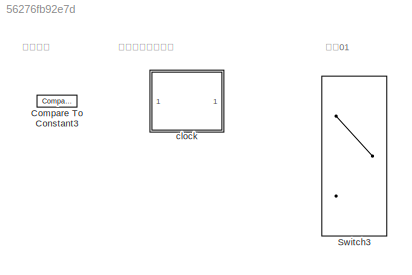
MODEL slx_56276fb92e7d
KIND model
CONFIG AbsTol = auto
CONFIG EnableMultiTasking = off
CONFIG FixedStep = auto
CONFIG MaxStep = auto
CONFIG MinStep = auto
CONFIG RelTol = 1e-3
CONFIG SampleTimeConstraint = Unconstrained
CONFIG Solver = VariableStepAuto
CONFIG SolverName = VariableStepAuto
CONFIG StartTime = 0.0
CONFIG StopTime = 10.0
BLOCK [Reference] Compare To Constant3  REF=simulink/Logic and Bit
Operations/Compare
To Constant
  Ports = [1, 1]
  SourceBlock = simulink/Logic and Bit\nOperations/Compare\nTo Constant
  SourceProductBaseCode = SL
  SourceProductName = Simulink
  SourceType = Compare To Constant
BLOCK [Switch] Switch3
  Criteria = u2 > Threshold
  InputSameDT = off
  OutDataTypeStr = uint16
  SaturateOnIntegerOverflow = off
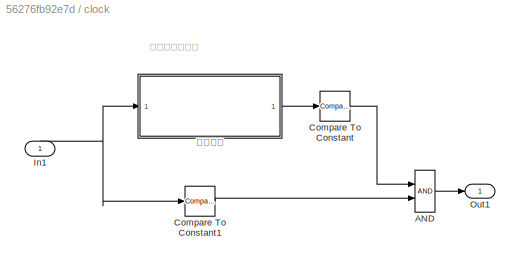
BLOCK [SubSystem] clock
  Ports = [1, 1]
  RequestExecContextInheritance = off
BLOCK [Logic] clock/AND
  AllPortsSameDT = off
  IconShape = distinctive
  OutDataTypeStr = boolean
  Ports = [2, 1]
BLOCK [Reference] clock/Compare To Constant  REF=simulink/Logic and Bit
Operations/Compare
To Constant
  Ports = [1, 1]
  SourceBlock = simulink/Logic and Bit\nOperations/Compare\nTo Constant
  SourceProductBaseCode = SL
  SourceProductName = Simulink
  SourceType = Compare To Constant
BLOCK [Reference] clock/Compare To Constant1  REF=simulink/Logic and Bit
Operations/Compare
To Constant
  Ports = [1, 1]
  SourceBlock = simulink/Logic and Bit\nOperations/Compare\nTo Constant
  SourceProductBaseCode = SL
  SourceProductName = Simulink
  SourceType = Compare To Constant
BLOCK [Inport] clock/In1
  IconDisplay = Port number
BLOCK [Outport] clock/Out1
  IconDisplay = Port number
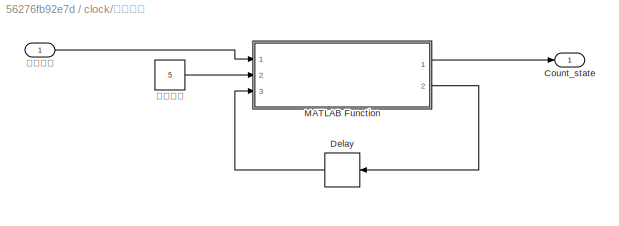
BLOCK [SubSystem] clock/计时计数
  Description = 计数模块，当有输入信号有跳变的时候会触发使计数值清零
  Ports = [1, 1]
  RequestExecContextInheritance = off
  TreatAsAtomicUnit = on
BLOCK [Outport] clock/计时计数/Count_state
  IconDisplay = Port number
BLOCK [Delay] clock/计时计数/Delay
  DelayLength = 1
  InputPortMap = u0
  Ports = [1, 1]
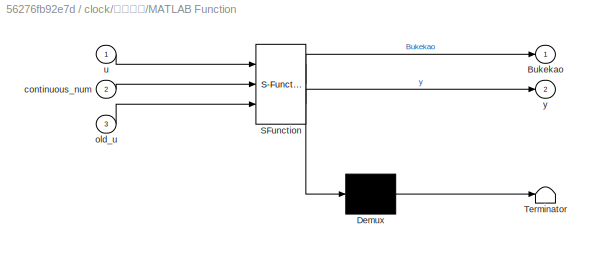
BLOCK [SubSystem] clock/计时计数/MATLAB Function
  ErrorFcn = Stateflow.Translate.translate
  PermitHierarchicalResolution = ExplicitOnly
  Ports = [3, 2]
  RequestExecContextInheritance = off
  SFBlockType = MATLAB Function
  TreatAsAtomicUnit = on
BLOCK [Demux] clock/计时计数/MATLAB Function/ Demux 
  Outputs = 1
  Ports = [1, 1]
BLOCK [S-Function] clock/计时计数/MATLAB Function/ SFunction 
  EnableBusSupport = on
  FunctionName = sf_sfun
  PortCounts = [3 3]
  Ports = [3, 3]
  SFcnIsStateOwnerBlock = off
  SFunctionDeploymentMode = off
  Tag = Stateflow S-Function untitled 4
BLOCK [Terminator] clock/计时计数/MATLAB Function/ Terminator 
BLOCK [Outport] clock/计时计数/MATLAB Function/Bukekao
  IconDisplay = Port number
BLOCK [Inport] clock/计时计数/MATLAB Function/continuous_num
  IconDisplay = Port number
  Port = 2
BLOCK [Inport] clock/计时计数/MATLAB Function/old_u
  IconDisplay = Port number
  Port = 3
BLOCK [Inport] clock/计时计数/MATLAB Function/u
  IconDisplay = Port number
BLOCK [Outport] clock/计时计数/MATLAB Function/y
  IconDisplay = Port number
  Port = 2
BLOCK [Constant] clock/计时计数/计数次数
  SampleTime = -1
  Value = 5
BLOCK [Inport] clock/计时计数/计数状态
  IconDisplay = Port number
ANNOTATION (root): 可自设定计数次数
ANNOTATION (root): 状态判断
ANNOTATION (root): 输出01
ANNOTATION clock: 点里面设置次数
LINE clock/AND:1 -> clock/Out1:1
LINE clock/Compare To Constant1:1 -> clock/AND:2
LINE clock/Compare To Constant:1 -> clock/AND:1
NET clock/In1:1 -> clock/Compare To Constant1:1, clock/计时计数:1
LINE clock/计时计数/Delay:1 -> clock/计时计数/MATLAB Function:3
LINE clock/计时计数/MATLAB Function:1 -> clock/计时计数/Count_state:1
LINE clock/计时计数/MATLAB Function:2 -> clock/计时计数/Delay:1
LINE clock/计时计数/计数次数:1 -> clock/计时计数/MATLAB Function:2
LINE clock/计时计数/计数状态:1 -> clock/计时计数/MATLAB Function:1
LINE clock/计时计数:1 -> clock/Compare To Constant:1
note: NET lines group one-source signal fan-out (src -> all destinations, sorted); 1:1 wires keep LINE
CHART clock/计时计数/MATLAB Function states=1 transitions=1
  STATE_LABEL 'eML_blk_kernel()'
  STATE_LABEL 'SCRIPT:\nfunction [Bukekao,y] = fcn(u,continuous_num,old_u)\n%\n%\n%出现踏板不可靠\nif(u==1)\n    y = 1+old_u;        %输出的不可靠次数y = 累计次数 + 1；\nelse\n    y=0;                %输出可靠后清除不可靠信号\nend\nif(y>continuous_num)    %当不可靠次数y > 设定的阈值次数\n    Bukekao=1;          %不可靠输出 1 \nelse\n    Bukekao=0;          %否则不可靠输出 0\nend\nif(y>100)\n    y = 100;\nend\n\n'
